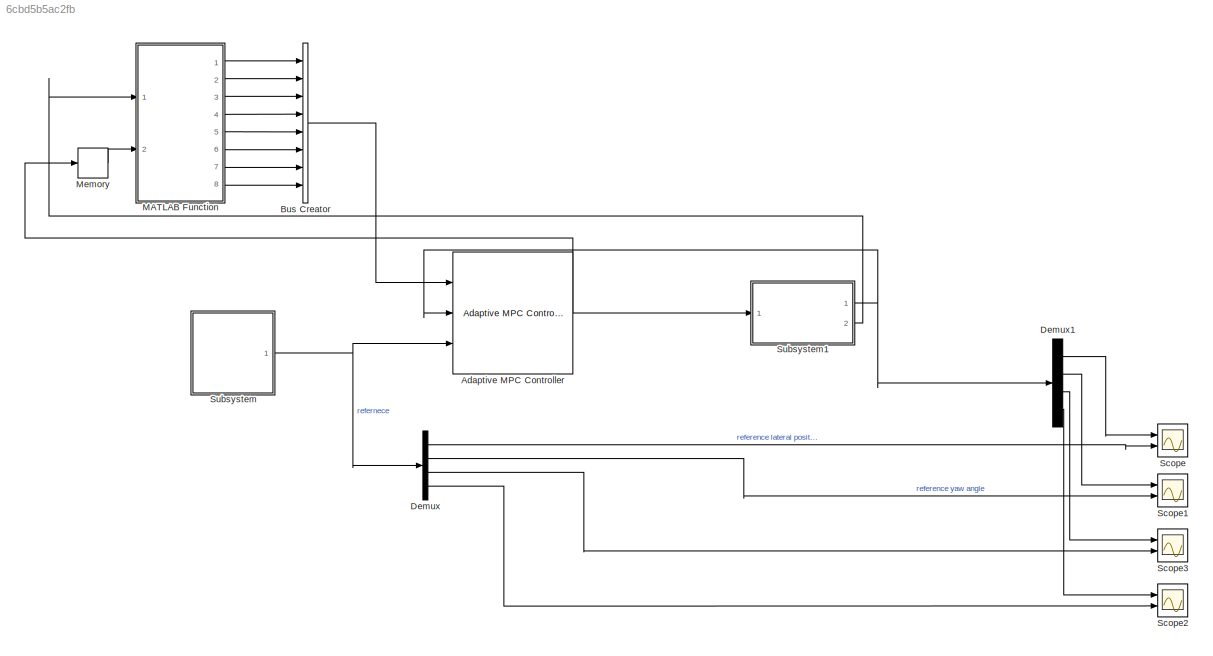
MODEL slx_6cbd5b5ac2fb
KIND model
CONFIG AbsTol = auto
CONFIG EnableMultiTasking = off
CONFIG FixedStep = auto
CONFIG MaxStep = auto
CONFIG MinStep = auto
CONFIG RelTol = 1e-3
CONFIG SampleTimeConstraint = Unconstrained
CONFIG SolverName = VariableStepAuto
CONFIG StartTime = 0.0
CONFIG StopTime = 10.0
BLOCK [Reference] Adaptive MPC Controller  REF=mpclib/Adaptive MPC Controller  (lib defined in mdl_ae329e0e0455)
  Ports = [3, 1]
  SCDEnableBlockLinearizationSpecification = on
  SourceBlock = mpclib/Adaptive MPC Controller
  SourceProductBaseCode = MP
  SourceType = Adaptive MPC
BLOCK [BusCreator] Bus Creator
  DisplayOption = bar
  InheritFromInputs = on
  Inputs = 8
  Ports = [8, 1]
BLOCK [Demux] Demux
  Ports = [1, 4]
BLOCK [Demux] Demux1
  Ports = [1, 4]
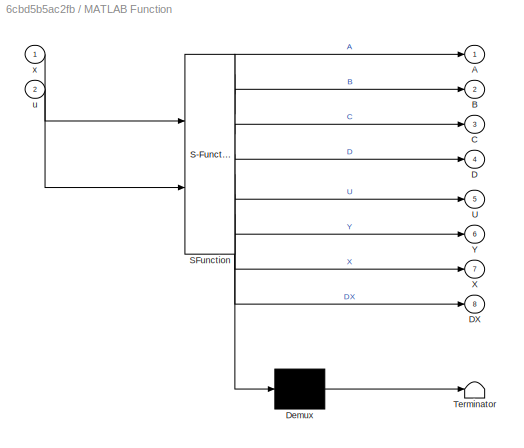
BLOCK [SubSystem] MATLAB Function
  ErrorFcn = Stateflow.Translate.translate
  PermitHierarchicalResolution = ExplicitOnly
  Ports = [2, 8]
  RequestExecContextInheritance = off
  SFBlockType = MATLAB Function
  TreatAsAtomicUnit = on
BLOCK [Demux] MATLAB Function/ Demux 
  Outputs = 1
  Ports = [1, 1]
BLOCK [S-Function] MATLAB Function/ SFunction 
  EnableBusSupport = on
  FunctionName = sf_sfun
  PortCounts = [2 9]
  Ports = [2, 9]
  SFcnIsStateOwnerBlock = off
  SFunctionDeploymentMode = off
  Tag = Stateflow S-Function 1
BLOCK [Terminator] MATLAB Function/ Terminator 
BLOCK [Outport] MATLAB Function/A
BLOCK [Outport] MATLAB Function/B
  Port = 2
BLOCK [Outport] MATLAB Function/C
  Port = 3
BLOCK [Outport] MATLAB Function/D
  Port = 4
BLOCK [Outport] MATLAB Function/DX
  Port = 8
BLOCK [Outport] MATLAB Function/U
  Port = 5
BLOCK [Outport] MATLAB Function/X
  Port = 7
BLOCK [Outport] MATLAB Function/Y
  Port = 6
BLOCK [Inport] MATLAB Function/u
  Port = 2
BLOCK [Inport] MATLAB Function/x
BLOCK [Memory] Memory
BLOCK [Scope] Scope
  Floating = off
  NumInputPorts = 2
  Ports = [2]
  ScopeSpecificationString = Simulink.scopes.TimeScopeBlockCfg('CurrentConfiguration', extmgr.ConfigurationSet(extmgr.Configuration('Core','General UI',true),extmgr.Configuration('Core','Source UI',true),extmgr.Configuration('Sources','WiredSimulink',true,'DataLoggingVariableName','ScopeData1'),extmgr.Configuration('Visuals','Time Domain',true,'SerializedDisplays',{struct('MinYLimReal','-22.49444','MaxYLimReal','224.44994','Y...<+1404ch>
BLOCK [Scope] Scope1
  Floating = off
  NumInputPorts = 2
  Ports = [2]
  ScopeSpecificationString = Simulink.scopes.TimeScopeBlockCfg('CurrentConfiguration', extmgr.ConfigurationSet(extmgr.Configuration('Core','General UI',true),extmgr.Configuration('Core','Source UI',true),extmgr.Configuration('Sources','WiredSimulink',true,'DataLoggingVariableName','ScopeData2'),extmgr.Configuration('Visuals','Time Domain',true,'SerializedDisplays',{struct('MinYLimReal','-12.32385','MaxYLimReal','11.70895','YL...<+1393ch>
BLOCK [Scope] Scope2
  Floating = off
  NumInputPorts = 2
  Ports = [2]
  ScopeSpecificationString = Simulink.scopes.TimeScopeBlockCfg('CurrentConfiguration', extmgr.ConfigurationSet(extmgr.Configuration('Core','General UI',true),extmgr.Configuration('Core','Source UI',true),extmgr.Configuration('Sources','WiredSimulink',true),extmgr.Configuration('Visuals','Time Domain',true,'SerializedDisplays',{struct('MinYLimReal','17.77578','MaxYLimReal','40.01796','YLabelReal','','MinYLimMag','17.77578','Ma...<+1342ch>
BLOCK [Scope] Scope3
  Floating = off
  NumInputPorts = 2
  Ports = [2]
  ScopeSpecificationString = Simulink.scopes.TimeScopeBlockCfg('CurrentConfiguration', extmgr.ConfigurationSet(extmgr.Configuration('Core','General UI',true),extmgr.Configuration('Core','Source UI',true),extmgr.Configuration('Sources','WiredSimulink',true,'DataLoggingVariableName','ScopeData3'),extmgr.Configuration('Visuals','Time Domain',true,'SerializedDisplays',{struct('MinYLimReal','-2.19052','MaxYLimReal','2.05188','YLab...<+1375ch>
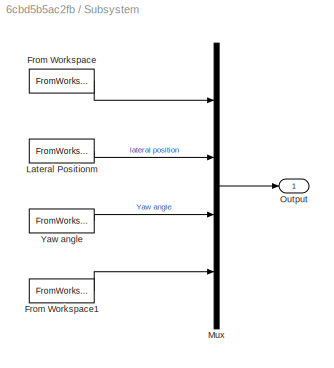
BLOCK [SubSystem] Subsystem
  Ports = [0, 1]
  RequestExecContextInheritance = off
BLOCK [FromWorkspace] Subsystem/From Workspace
  VariableName = longitudnal_position
BLOCK [FromWorkspace] Subsystem/From Workspace1
  VariableName = velocity
BLOCK [FromWorkspace] Subsystem/Lateral Positionm
  VariableName = lateral_position
BLOCK [Mux] Subsystem/Mux
  DisplayOption = bar
  Ports = [4, 1]
BLOCK [Outport] Subsystem/Output
BLOCK [FromWorkspace] Subsystem/Yaw angle
  VariableName = yaw_angle
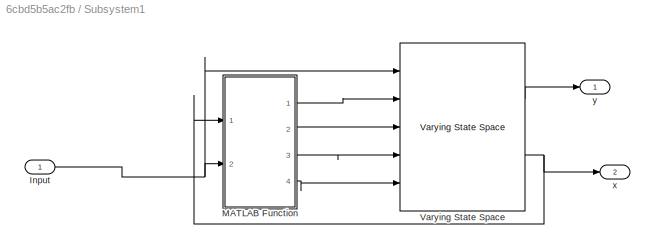
BLOCK [SubSystem] Subsystem1
  Ports = [1, 2]
  RequestExecContextInheritance = off
BLOCK [Inport] Subsystem1/Input
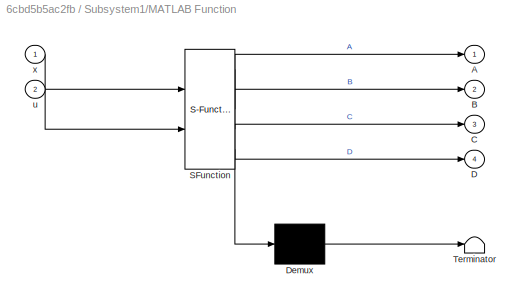
BLOCK [SubSystem] Subsystem1/MATLAB Function
  ErrorFcn = Stateflow.Translate.translate
  PermitHierarchicalResolution = ExplicitOnly
  Ports = [2, 4]
  RequestExecContextInheritance = off
  SFBlockType = MATLAB Function
  TreatAsAtomicUnit = on
BLOCK [Demux] Subsystem1/MATLAB Function/ Demux 
  Outputs = 1
  Ports = [1, 1]
BLOCK [S-Function] Subsystem1/MATLAB Function/ SFunction 
  EnableBusSupport = on
  FunctionName = sf_sfun
  PortCounts = [2 5]
  Ports = [2, 5]
  SFcnIsStateOwnerBlock = off
  SFunctionDeploymentMode = off
  Tag = Stateflow S-Function 2
BLOCK [Terminator] Subsystem1/MATLAB Function/ Terminator 
BLOCK [Outport] Subsystem1/MATLAB Function/A
BLOCK [Outport] Subsystem1/MATLAB Function/B
  Port = 2
BLOCK [Outport] Subsystem1/MATLAB Function/C
  Port = 3
BLOCK [Outport] Subsystem1/MATLAB Function/D
  Port = 4
BLOCK [Inport] Subsystem1/MATLAB Function/u
  Port = 2
BLOCK [Inport] Subsystem1/MATLAB Function/x
BLOCK [Reference] Subsystem1/Varying State Space  REF=cstblocks/Linear Parameter Varying/Varying State Space
  Ports = [5, 2]
  SourceBlock = cstblocks/Linear Parameter Varying/Varying State Space
  SourceProductBaseCode = CT
  SourceType = Varying State Space
BLOCK [Outport] Subsystem1/x
  Port = 2
BLOCK [Outport] Subsystem1/y
NET Adaptive MPC Controller:1 -> Memory:1, Subsystem1:1
LINE Bus Creator:1 -> Adaptive MPC Controller:1
LINE Demux1:1 -> Scope:1
LINE Demux1:2 -> Scope1:1
LINE Demux1:3 -> Scope3:1
LINE Demux1:4 -> Scope2:1
LINE Demux:1 -> Scope:2
LINE Demux:2 -> Scope1:2
LINE Demux:3 -> Scope3:2
LINE Demux:4 -> Scope2:2
LINE MATLAB Function:1 -> Bus Creator:1
LINE MATLAB Function:2 -> Bus Creator:2
LINE MATLAB Function:3 -> Bus Creator:3
LINE MATLAB Function:4 -> Bus Creator:4
LINE MATLAB Function:5 -> Bus Creator:5
LINE MATLAB Function:6 -> Bus Creator:6
LINE MATLAB Function:7 -> Bus Creator:7
LINE MATLAB Function:8 -> Bus Creator:8
LINE Memory:1 -> MATLAB Function:2
LINE Subsystem/From Workspace1:1 -> Subsystem/Mux:4
LINE Subsystem/From Workspace:1 -> Subsystem/Mux:1
LINE Subsystem/Lateral Positionm:1 -> Subsystem/Mux:2
LINE Subsystem/Mux:1 -> Subsystem/Output:1
LINE Subsystem/Yaw angle:1 -> Subsystem/Mux:3
NET Subsystem1/Input:1 -> Subsystem1/MATLAB Function:2, Subsystem1/Varying State Space:1
LINE Subsystem1/MATLAB Function:1 -> Subsystem1/Varying State Space:2
LINE Subsystem1/MATLAB Function:2 -> Subsystem1/Varying State Space:3
LINE Subsystem1/MATLAB Function:3 -> Subsystem1/Varying State Space:4
LINE Subsystem1/MATLAB Function:4 -> Subsystem1/Varying State Space:5
LINE Subsystem1/Varying State Space:1 -> Subsystem1/y:1
NET Subsystem1/Varying State Space:2 -> Subsystem1/MATLAB Function:1, Subsystem1/x:1
NET Subsystem1:1 -> Adaptive MPC Controller:2, Demux1:1
LINE Subsystem1:2 -> MATLAB Function:1
NET Subsystem:1 -> Adaptive MPC Controller:3, Demux:1
note: NET lines group one-source signal fan-out (src -> all destinations, sorted); 1:1 wires keep LINE
CHART MATLAB Function states=1 transitions=1
  STATE_LABEL 'eML_blk_kernel()'
  STATE_LABEL 'SCRIPT:\nfunction [A,B,C,D,U,Y,X,DX]=fcn(x,u)\nTs = 0.1;\n% The ego car has rectangular shaper with a length of 5 meters and width of\n% 2 meters. The model has four states:\n%\n% * |xPos| - Global horizontal position of the car center\n% * |yPos| - Global vertical position of the car center\n% * |theta| - Heading angle of the car (0 when facing east, counterclockwise positive)\n% * |V| - Speed of the car ...<+814ch>'
CHART Subsystem1/MATLAB Function states=1 transitions=1
  STATE_LABEL 'eML_blk_kernel()'
  STATE_LABEL 'SCRIPT:\nfunction [A,B,C,D] = fcn(x,u)\n    % The ego car has rectangular shaper with a length of 5 meters and width of\n    % 2 meters. The model has four states:\n    %\n    % * |xPos| - Global horizontal position of the car center\n    % * |yPos| - Global vertical position of the car center\n    % * |theta| - Heading angle of the car (0 when facing east, counterclockwise positive)\n    % * |V| - Speed ...<+690ch>'
CHART  states=0 transitions=0
CHART  states=0 transitions=0
